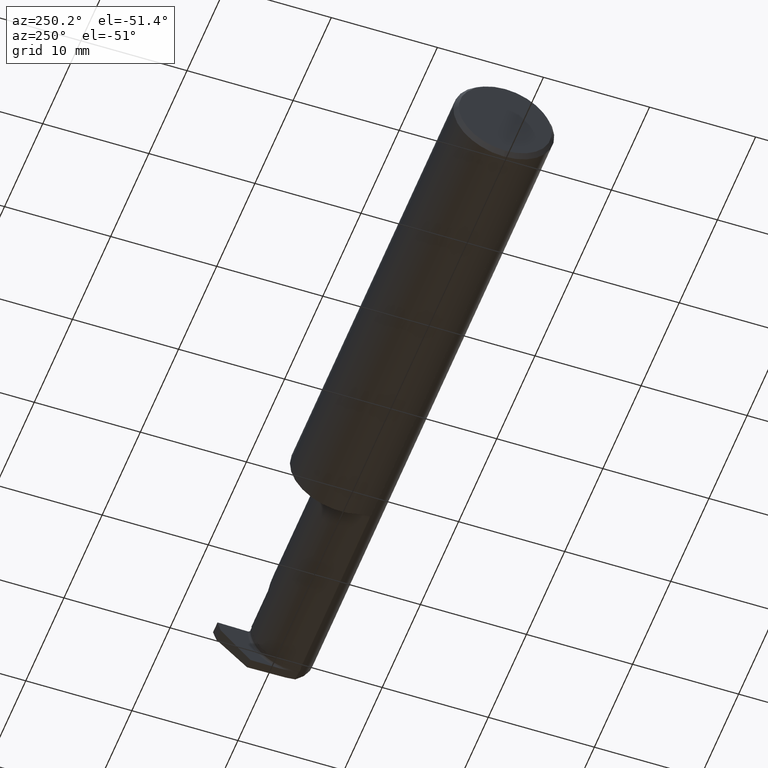
[diagram: clean part render]
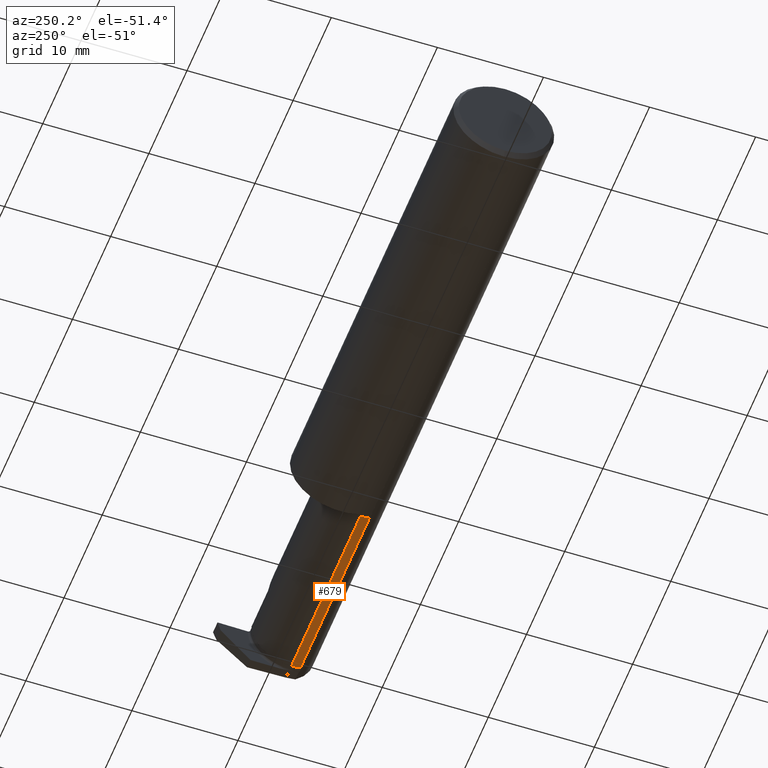
[diagram: same view with one face highlighted and labeled with its STEP entity id]
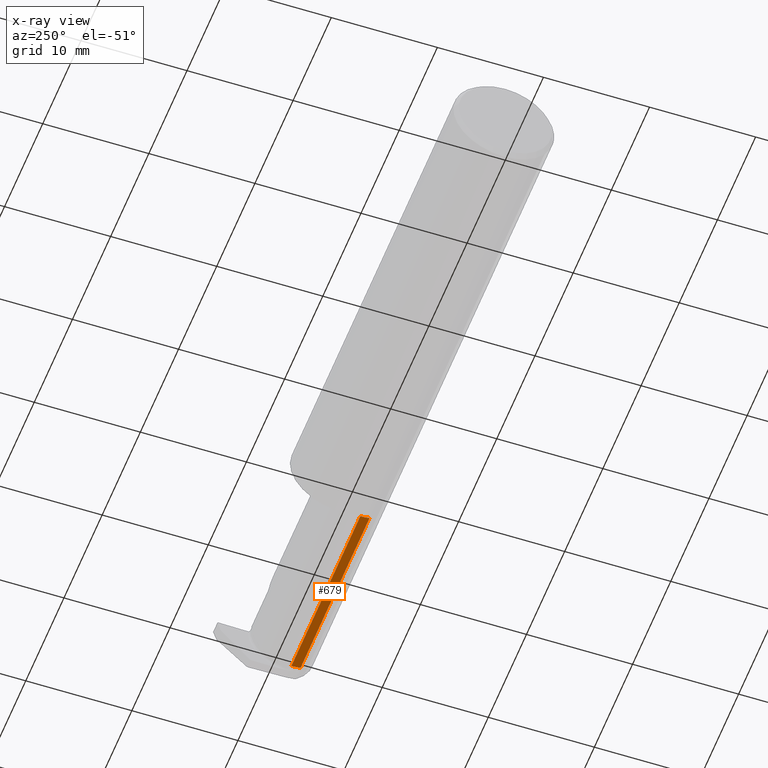
[diagram: x-ray of the same camera — body ghosted, the highlighted face saturated]
A machine part, auxiliary view. The second image highlights one B-rep face of the part: STEP entity #679.
The next image is the same camera in x-ray: the body ghosted, the highlighted face saturated — about 0% of this face is hidden behind the body in this view.
In plain terms, the highlighted cylindrical surface (partial cylindrical patch) has radius 3.81 mm, axis along (-1, -0, -0).
Its self-contained STEP definition (entity closure, byte-faithful):
#6 = VECTOR ( 'NONE', #580, 39.37007874015748143 ) ;
#9 = CARTESIAN_POINT ( 'NONE',  ( 2.436802821149928633, -0.08335000000000178377, -0.1500000000000000500 ) ) ;
#19 = CARTESIAN_POINT ( 'NONE',  ( 2.436802821149928633, -0.08335000000000178377, -0.1500000000000000500 ) ) ;
#35 = ORIENTED_EDGE ( 'NONE', *, *, #890, .F. ) ;
#58 = DIRECTION ( 'NONE',  ( -1.000000000000000000, -0.000000000000000000, -0.000000000000000000 ) ) ;
#64 = CIRCLE ( 'NONE', #507, 0.1499999999999999667 ) ;
#69 = CARTESIAN_POINT ( 'NONE',  ( 1.724999999999999867, -0.08334999999999996578, 0.000000000000000000 ) ) ;
#107 = CARTESIAN_POINT ( 'NONE',  ( 1.724999999999999867, -0.1172600179964006922, -0.1461167706989302817 ) ) ;
#113 = VERTEX_POINT ( 'NONE', #107 ) ;
#143 = DIRECTION ( 'NONE',  ( 0.000000000000000000, 0.000000000000000000, 1.000000000000000000 ) ) ;
#148 = VECTOR ( 'NONE', #58, 39.37007874015748143 ) ;
#162 = VERTEX_POINT ( 'NONE', #821 ) ;
#221 = CARTESIAN_POINT ( 'NONE',  ( 2.086500000000000021, -0.1172600179964007477, -0.1461167706989302817 ) ) ;
#231 = DIRECTION ( 'NONE',  ( -1.000000000000000000, -0.000000000000000000, -0.000000000000000000 ) ) ;
#253 = CARTESIAN_POINT ( 'NONE',  ( 2.436734632556784241, -0.1060859948627173310, -0.1487099797039125593 ) ) ;
#293 = CYLINDRICAL_SURFACE ( 'NONE', #1020, 0.1499999999999999667 ) ;
#316 = EDGE_CURVE ( 'NONE', #397, #320, #1003, .T. ) ;
#320 = VERTEX_POINT ( 'NONE', #801 ) ;
#337 = CARTESIAN_POINT ( 'NONE',  ( 2.436790980809280249, -0.09478223726027081020, -0.1499999999999998279 ) ) ;
#351 = LINE ( 'NONE', #982, #6 ) ;
#388 = EDGE_LOOP ( 'NONE', ( #35, #539, #520, #623 ) ) ;
#397 = VERTEX_POINT ( 'NONE', #19 ) ;
#493 = EDGE_CURVE ( 'NONE', #320, #113, #933, .T. ) ;
#507 = AXIS2_PLACEMENT_3D ( 'NONE', #69, #231, #862 ) ;
#520 = ORIENTED_EDGE ( 'NONE', *, *, #493, .T. ) ;
#539 = ORIENTED_EDGE ( 'NONE', *, *, #316, .T. ) ;
#580 = DIRECTION ( 'NONE',  ( -1.000000000000000000, -0.000000000000000000, -0.000000000000000000 ) ) ;
#623 = ORIENTED_EDGE ( 'NONE', *, *, #711, .F. ) ;
#625 = DIRECTION ( 'NONE',  ( -1.000000000000000000, -0.000000000000000000, -0.000000000000000000 ) ) ;
#679 = ADVANCED_FACE ( 'NONE', ( #1007 ), #293, .T. ) ;
#697 = CARTESIAN_POINT ( 'NONE',  ( 1.699999999999999956, -0.08334999999999996578, 0.000000000000000000 ) ) ;
#711 = EDGE_CURVE ( 'NONE', #162, #113, #64, .T. ) ;
#801 = CARTESIAN_POINT ( 'NONE',  ( 2.436647136148047732, -0.1172600179964005812, -0.1461167706989303094 ) ) ;
#821 = CARTESIAN_POINT ( 'NONE',  ( 1.724999999999999867, -0.08334999999999995191, -0.1499999999999999667 ) ) ;
#862 = DIRECTION ( 'NONE',  ( 0.000000000000000000, 0.000000000000000000, 1.000000000000000000 ) ) ;
#890 = EDGE_CURVE ( 'NONE', #397, #162, #351, .T. ) ;
#933 = LINE ( 'NONE', #221, #148 ) ;
#972 = CARTESIAN_POINT ( 'NONE',  ( 2.436647136148047732, -0.1172600179964005812, -0.1461167706989303094 ) ) ;
#982 = CARTESIAN_POINT ( 'NONE',  ( 1.699999999999999956, -0.08334999999999995191, -0.1499999999999999667 ) ) ;
#1003 = B_SPLINE_CURVE_WITH_KNOTS ( 'NONE', 3,
 ( #9, #337, #253, #972 ),
 .UNSPECIFIED., .F., .F.,
 ( 4, 4 ),
 ( 0.006011235248771500984, 0.006881346353361161503 ),
 .UNSPECIFIED. ) ;
#1007 = FACE_OUTER_BOUND ( 'NONE', #388, .T. ) ;
#1020 = AXIS2_PLACEMENT_3D ( 'NONE', #697, #625, #143 ) ;